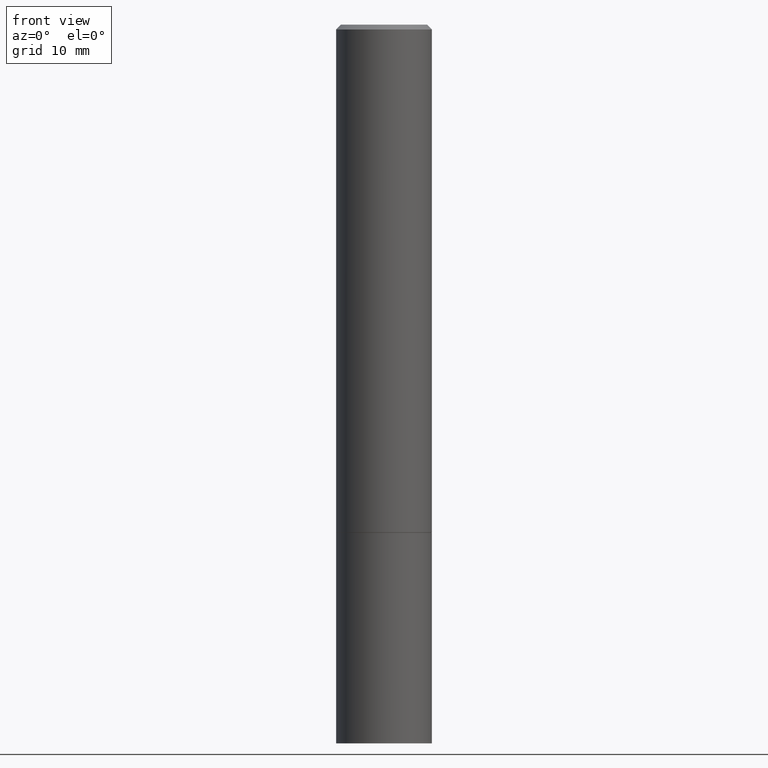
[diagram: clean part render]
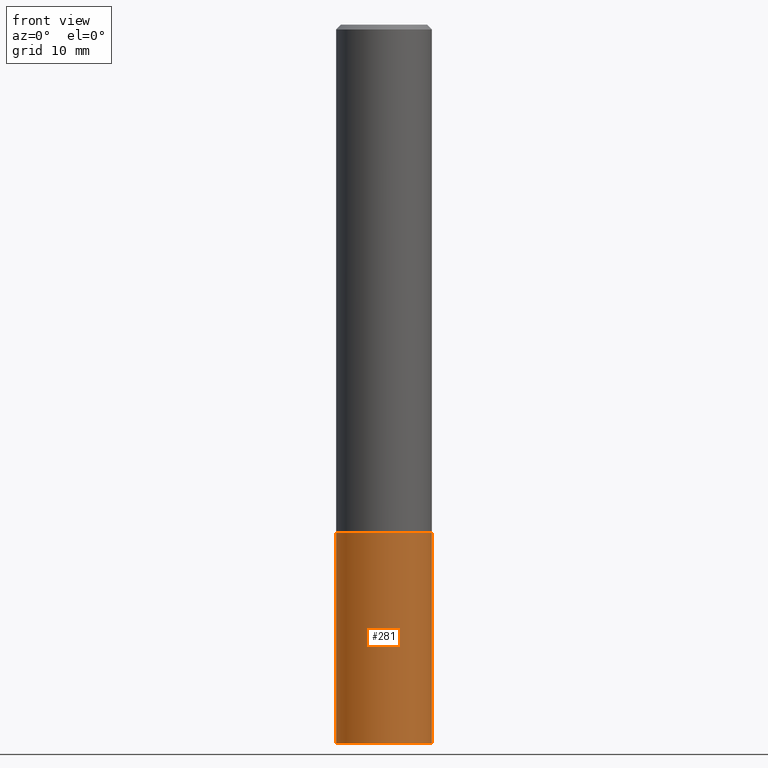
[diagram: same view with one face highlighted and labeled with its STEP entity id]
A machine part, front view. The second image highlights one B-rep face of the part: STEP entity #281.
In plain terms, the highlighted cylindrical surface (partial cylindrical patch) has radius 5 mm, axis along (-0, 0, 1).
Its self-contained STEP definition (entity closure, byte-faithful):
#7 = ORIENTED_EDGE ( 'NONE', *, *, #272, .T. ) ;
#10 = CARTESIAN_POINT ( 'NONE',  ( 7.220980290903470182E-29, -1.030964609733603853E-14, -2.952799999999999869 ) ) ;
#34 = VERTEX_POINT ( 'NONE', #88 ) ;
#54 = FACE_OUTER_BOUND ( 'NONE', #172, .T. ) ;
#65 = DIRECTION ( 'NONE',  ( -2.445468806185136877E-29, 3.491481338843145188E-15, 1.000000000000000000 ) ) ;
#68 = EDGE_CURVE ( 'NONE', #350, #274, #113, .T. ) ;
#72 = LINE ( 'NONE', #95, #315 ) ;
#74 = DIRECTION ( 'NONE',  ( -2.445468806185136597E-29, 3.491481338843145583E-15, 1.000000000000000000 ) ) ;
#77 = VERTEX_POINT ( 'NONE', #181 ) ;
#88 = CARTESIAN_POINT ( 'NONE',  ( -0.1968500000000000250, -7.398956728206258518E-15, -2.086699999999999999 ) ) ;
#94 = DIRECTION ( 'NONE',  ( 1.000000000000000000, -6.982962677686267499E-15, 0.000000000000000000 ) ) ;
#95 = CARTESIAN_POINT ( 'NONE',  ( -0.1968500000000000250, 1.398703375343757393E-15, -9.682923725166783677E-30 ) ) ;
#98 = AXIS2_PLACEMENT_3D ( 'NONE', #356, #157, #94 ) ;
#99 = CARTESIAN_POINT ( 'NONE',  ( 0.1968500000000000250, -8.660270312866532536E-15, -2.086699999999999999 ) ) ;
#113 = LINE ( 'NONE', #325, #155 ) ;
#121 = ORIENTED_EDGE ( 'NONE', *, *, #144, .F. ) ;
#136 = ORIENTED_EDGE ( 'NONE', *, *, #68, .T. ) ;
#144 = EDGE_CURVE ( 'NONE', #34, #274, #276, .T. ) ;
#155 = VECTOR ( 'NONE', #65, 39.37007874015748143 ) ;
#157 = DIRECTION ( 'NONE',  ( -2.445468806185136597E-29, 3.491481338843145583E-15, 1.000000000000000000 ) ) ;
#165 = CARTESIAN_POINT ( 'NONE',  ( 0.1968500000000000250, -1.168424230043858014E-14, -2.952799999999999869 ) ) ;
#172 = EDGE_LOOP ( 'NONE', ( #212, #7, #136, #121 ) ) ;
#181 = CARTESIAN_POINT ( 'NONE',  ( -0.1968500000000000250, -7.398956728206258518E-15, -2.952799999999999869 ) ) ;
#187 = AXIS2_PLACEMENT_3D ( 'NONE', #337, #74, #364 ) ;
#206 = CIRCLE ( 'NONE', #290, 0.1968500000000000250 ) ;
#212 = ORIENTED_EDGE ( 'NONE', *, *, #227, .F. ) ;
#215 = DIRECTION ( 'NONE',  ( 1.000000000000000000, -6.982962677686267499E-15, 0.000000000000000000 ) ) ;
#227 = EDGE_CURVE ( 'NONE', #77, #34, #72, .T. ) ;
#246 = DIRECTION ( 'NONE',  ( -2.445468806185136597E-29, 3.491481338843145583E-15, 1.000000000000000000 ) ) ;
#272 = EDGE_CURVE ( 'NONE', #77, #350, #206, .T. ) ;
#274 = VERTEX_POINT ( 'NONE', #99 ) ;
#276 = CIRCLE ( 'NONE', #98, 0.1968500000000000250 ) ;
#281 = ADVANCED_FACE ( 'NONE', ( #54 ), #307, .T. ) ;
#290 = AXIS2_PLACEMENT_3D ( 'NONE', #10, #246, #215 ) ;
#296 = DIRECTION ( 'NONE',  ( -2.445468806185136877E-29, 3.491481338843145188E-15, 1.000000000000000000 ) ) ;
#307 = CYLINDRICAL_SURFACE ( 'NONE', #187, 0.1968500000000000250 ) ;
#315 = VECTOR ( 'NONE', #296, 39.37007874015748143 ) ;
#325 = CARTESIAN_POINT ( 'NONE',  ( 0.1968500000000000250, -1.374596203102541608E-15, 9.598753983154300858E-30 ) ) ;
#337 = CARTESIAN_POINT ( 'NONE',  ( 0.000000000000000000, 0.000000000000000000, 0.000000000000000000 ) ) ;
#350 = VERTEX_POINT ( 'NONE', #165 ) ;
#356 = CARTESIAN_POINT ( 'NONE',  ( 5.102959757866523939E-29, -7.285674109763990928E-15, -2.086699999999999999 ) ) ;
#364 = DIRECTION ( 'NONE',  ( 1.000000000000000000, -6.982962677686265922E-15, 4.876176775795935793E-29 ) ) ;